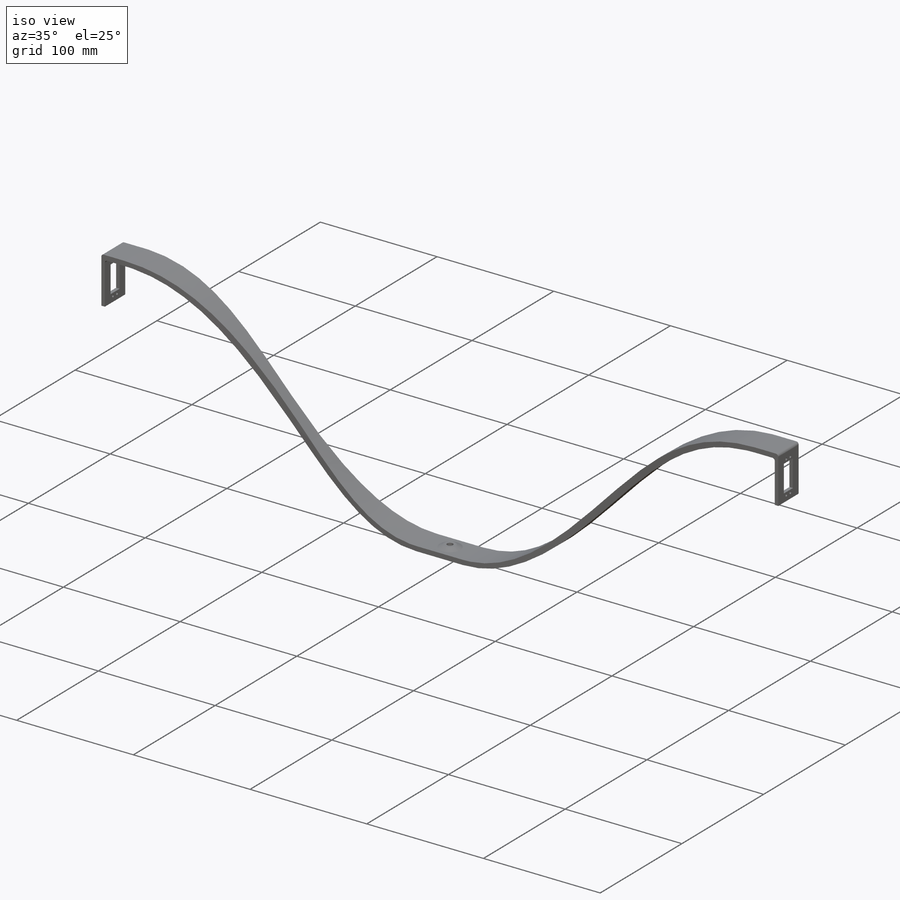
[diagram: iso view]
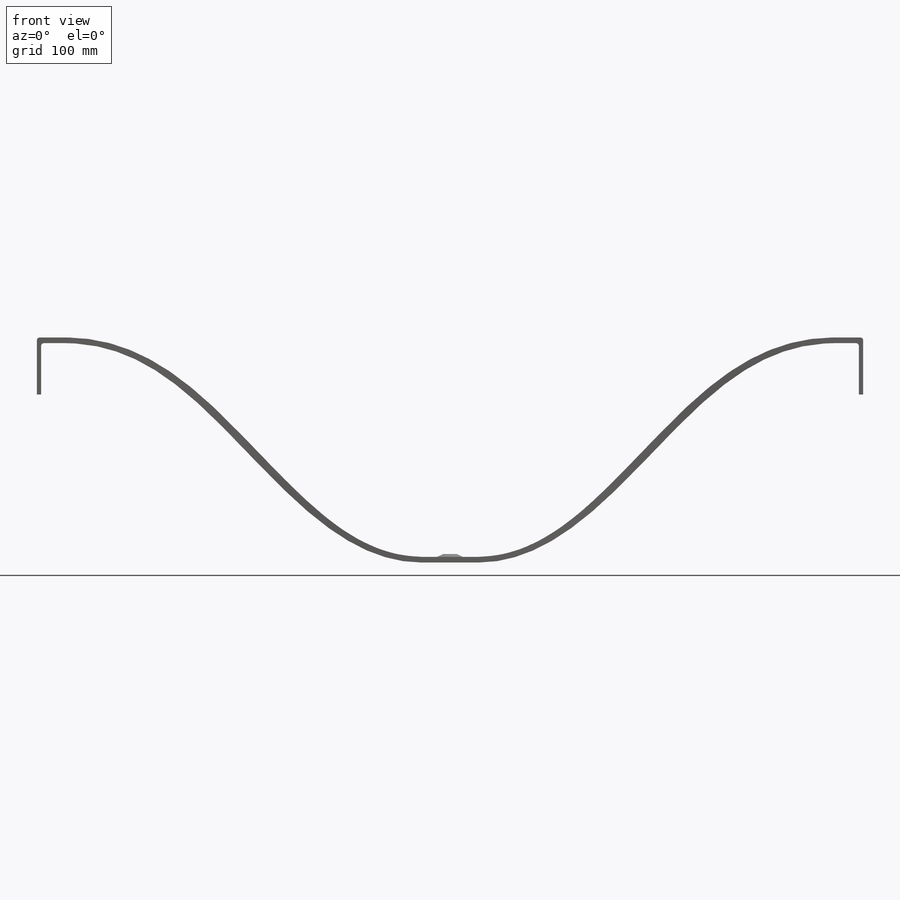
[diagram: front view]
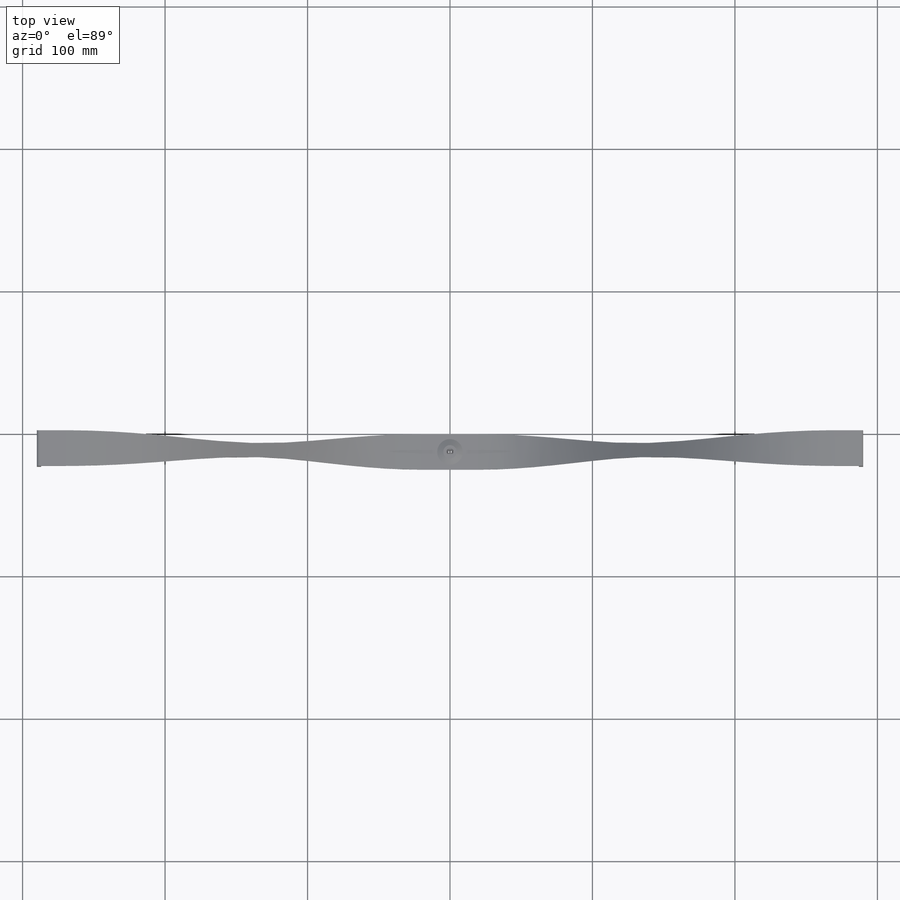
[diagram: top view]
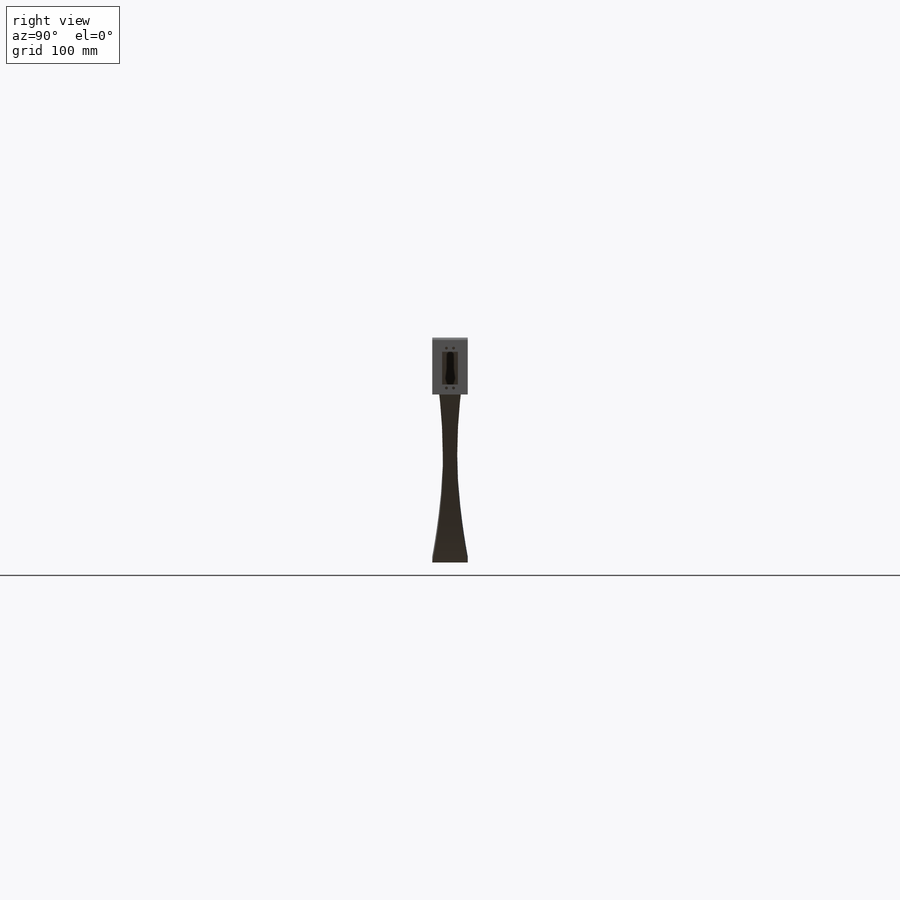
[diagram: right view]
SOLIDWORKS PART (.sldprt)
format: sldprt  version: not decoded by parser v0  size: 568,320 bytes
history: native  units: mm
features: sketch x6, plane x3, cut_extrude x3, extrude x2, material x1, chamfer x1, fillet x1, mirror x1 (+8 scaffold rows collapsed)
feature tree (26):
  scaffold x8  (default folders/planes/origin — collapsed)
  material  "Matériau <non spécifié>"
  plane  "Plan de face"
  plane  "Plan de dessus"
  plane  "Plan de droite"
  sketch  "Esquisse1"  dims[c1.D1=4.0mm c1.D2=40.0mm c1.D3=4.0mm c1.D4=20.0mm c1.D5=250.0mm c1.D6=150.0mm c2.D3=4.0mm c2.D7=3.0mm c2.D8=40.0mm c2.D4=20.0mm]
  extrude  "Boss.-Extru.1"  Depth=25mm
  sketch  "Esquisse3D1"  dims[c1.D1=~26.346668mm c1.D4=120.0mm c1.D2=10.0mm c1.D3=8.0mm c2.D1=120.0mm c2.D4=120.0mm c3.D1=125.0mm]
  sketch  "Esquisse2"  dims[D1=2.0mm D2=5.0mm D3=10.0mm]
  cut_extrude  "Enlèv. mat.-Extru.1"  [1 undecoded]
  sketch  "Esquisse3"  dims[D1=5.0mm]
  cut_extrude  "Enlèv. mat.-Extru.2"  Depth=3mm
  sketch  "Esquisse4"  dims[D1=5.0mm D2=18.0mm D3=12.0mm]
  extrude  "Boss.-Extru.2"  Depth=2mm
  chamfer  "Chanfrein1"  Distance=2mm Angle=65deg
  sketch  "Esquisse5"  dims[D4=2.0mm D7=2.0mm D1=11.0mm D2=23.0mm D3=10.0mm D5=2.5mm D6=2.5mm]
  cut_extrude  "Enlèv. mat.-Extru.3"  Depth=12mm
  fillet  "Congé6"  Radius=2mm
  mirror  "Symétrie13"
decode coverage: 12 of 14 modeling features carry decoded parameters
note: ~ marks probable driven/reference dimensions
note: 1 parameter value undecoded
note: suppression state not decoded; provenance and decode notes live in map.json
